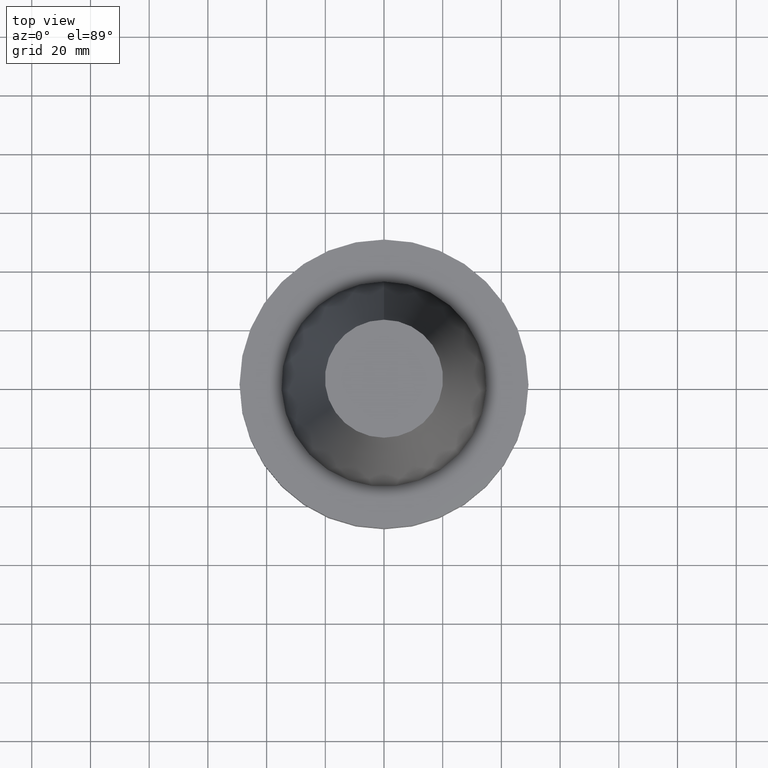
[diagram: clean part render]
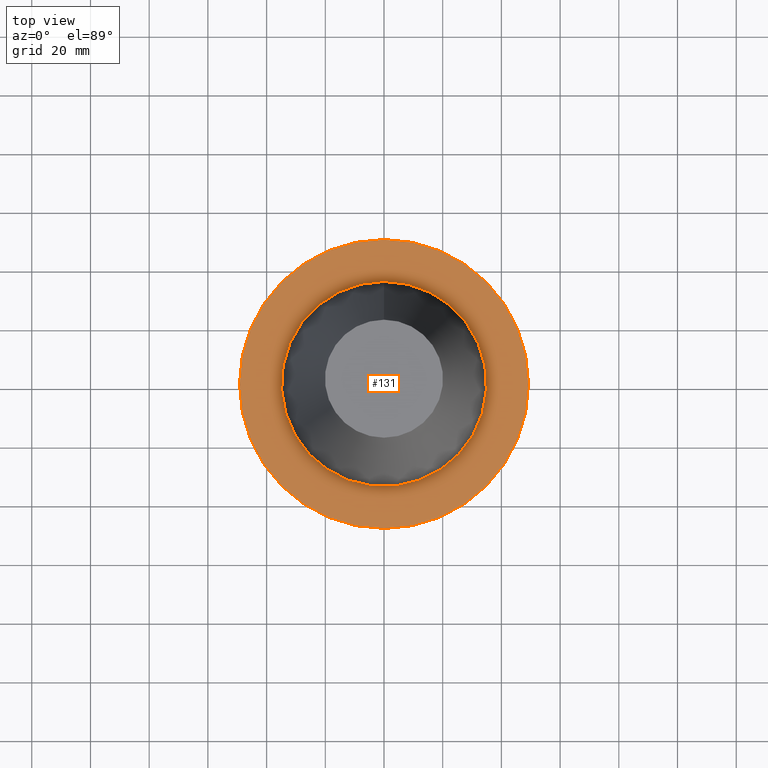
[diagram: same view with one face highlighted and labeled with its STEP entity id]
A machine part, top view. The second image highlights one B-rep face of the part: STEP entity #131.
In plain terms, the highlighted planar face has unit normal (-0, -0, 1).
Its self-contained STEP definition (entity closure, byte-faithful):
#56=EDGE_CURVE('Unnamed[1]',#153,#153,#154,.T.);
#128=EDGE_CURVE('Unnamed[1]',#265,#265,#266,.T.);
#131=ADVANCED_FACE('Unnamed[1]',(#269,#270),#271,.T.);
#153=VERTEX_POINT('',#286);
#154=CIRCLE('',#287,49.2125);
#265=VERTEX_POINT('',#425);
#266=CIRCLE('',#426,34.925);
#269=FACE_OUTER_BOUND('',#430,.T.);
#270=FACE_BOUND('',#431,.T.);
#271=PLANE('',#432);
#286=CARTESIAN_POINT('',(9.18485099360509E-017,49.2125,-1.49999999999999));
#287=AXIS2_PLACEMENT_3D('',#442,#443,#444);
#425=CARTESIAN_POINT('',(9.18485099360511E-017,34.925,-1.5));
#426=AXIS2_PLACEMENT_3D('',#567,#568,#569);
#430=EDGE_LOOP('',(#571));
#431=EDGE_LOOP('',(#572));
#432=AXIS2_PLACEMENT_3D('',#573,#574,#575);
#442=CARTESIAN_POINT('',(9.18485099360506E-017,-8.40509071371688E-015,-1.49999999999999));
#443=DIRECTION('',(6.12323399573677E-017,-1.2238438572974E-016,-1.0));
#444=DIRECTION('',(2.6667295817079E-033,1.0,-1.2238438572974E-016));
#567=CARTESIAN_POINT('',(9.18485099360506E-017,-8.40509071371688E-015,-1.49999999999999));
#568=DIRECTION('',(6.12323399573676E-017,-1.22384385729721E-016,-1.0));
#569=DIRECTION('',(2.66672958170765E-033,1.0,-1.22384385729721E-016));
#571=ORIENTED_EDGE('',*,*,#56,.F.);
#572=ORIENTED_EDGE('',*,*,#128,.T.);
#573=CARTESIAN_POINT('',(9.1848509936051E-017,42.06875,-1.49999999999999));
#574=DIRECTION('',(-6.12323399573677E-017,-1.22464679914735E-016,1.0));
#575=DIRECTION('',(1.23259516440783E-032,-1.0,-1.22464679914735E-016));